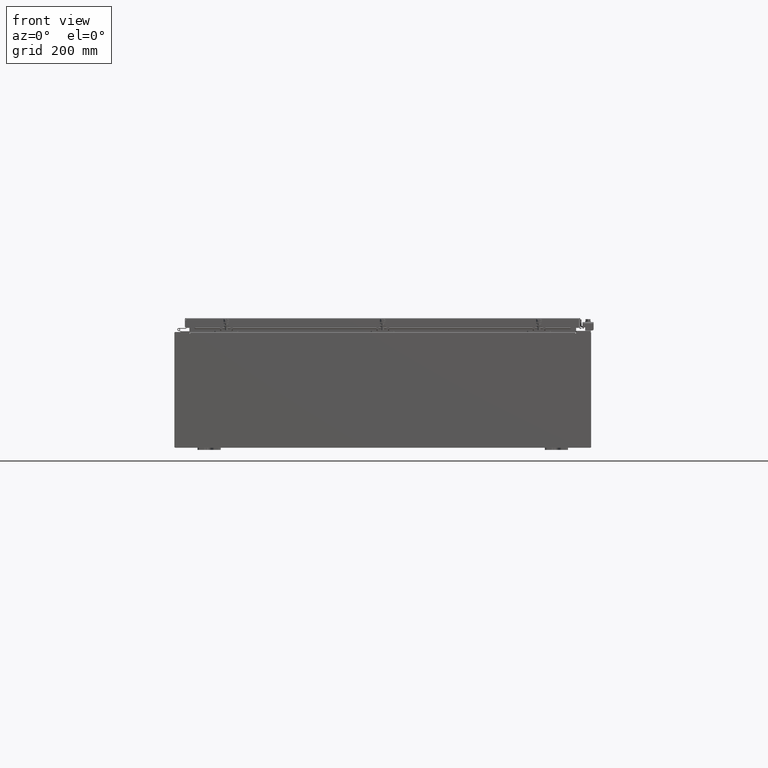
[diagram: clean part render]
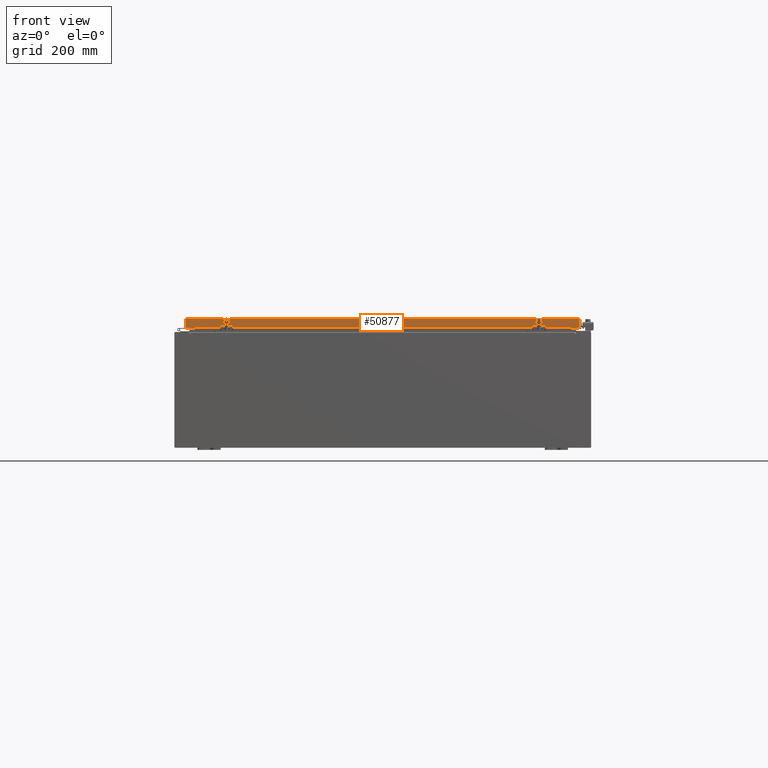
[diagram: same view with one face highlighted and labeled with its STEP entity id]
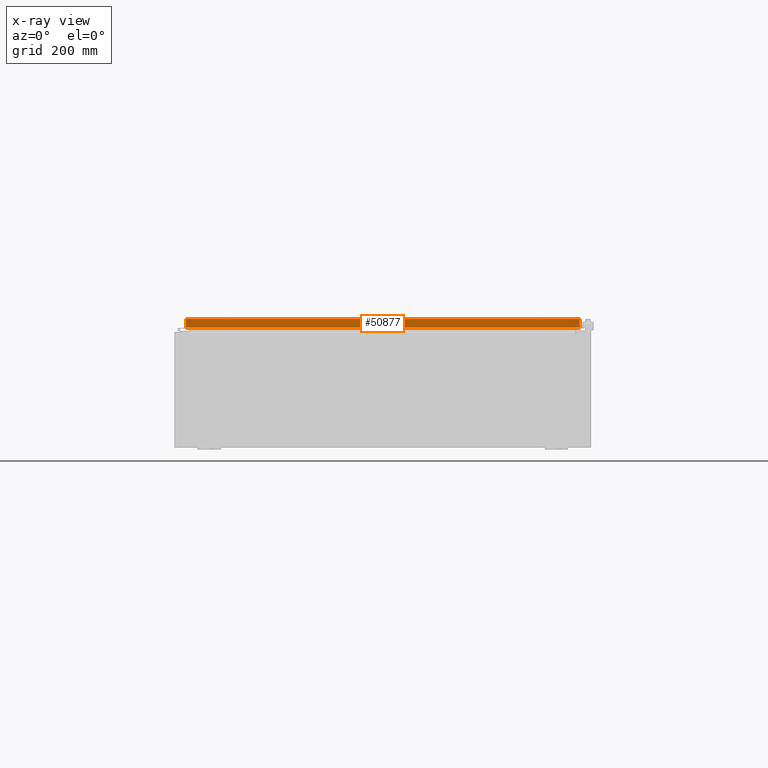
[diagram: x-ray of the same camera — body ghosted, the highlighted face saturated]
A machine part, front view. The second image highlights one B-rep face of the part: STEP entity #50877.
The next image is the same camera in x-ray: the body ghosted, the highlighted face saturated — about 0% of this face is hidden behind the body in this view.
In plain terms, the highlighted planar face has unit normal (-0, 1, -0).
Its self-contained STEP definition (entity closure, byte-faithful):
#14 = EDGE_CURVE ( 'NONE', #45630, #31687, #2429, .T. ) ;
#536 = DIRECTION ( 'NONE',  ( 0.0000000000000000000, 5.637761885544720300E-015, 1.000000000000000000 ) ) ;
#2429 = LINE ( 'NONE', #10888, #22041 ) ;
#5604 = ORIENTED_EDGE ( 'NONE', *, *, #47737, .T. ) ;
#6907 = VECTOR ( 'NONE', #23626, 39.37007874015748100 ) ;
#9279 = VECTOR ( 'NONE', #47193, 39.37007874015748100 ) ;
#10085 = VERTEX_POINT ( 'NONE', #37212 ) ;
#10482 = DIRECTION ( 'NONE',  ( 1.000000000000000000, 6.989207801985715800E-031, -3.922586267643549700E-045 ) ) ;
#10543 = CARTESIAN_POINT ( 'NONE',  ( -16.23915786437626700, -23.09400000000000500, -0.8500000000000048600 ) ) ;
#10814 = FACE_OUTER_BOUND ( 'NONE', #22855, .T. ) ;
#10888 = CARTESIAN_POINT ( 'NONE',  ( 17.07799999999999900, -23.09400000000000100, -0.08769999999999547600 ) ) ;
#13373 = EDGE_CURVE ( 'NONE', #31687, #33104, #36185, .T. ) ;
#13613 = CARTESIAN_POINT ( 'NONE',  ( -16.98915786437627100, -23.09400000000000100, 1.304592866407813600E-013 ) ) ;
#14365 = LINE ( 'NONE', #13613, #35191 ) ;
#14679 = ORIENTED_EDGE ( 'NONE', *, *, #41271, .F. ) ;
#17638 = ORIENTED_EDGE ( 'NONE', *, *, #22158, .F. ) ;
#17857 = DIRECTION ( 'NONE',  ( 0.0000000000000000000, -5.637761885544720300E-015, -1.000000000000000000 ) ) ;
#19027 = LINE ( 'NONE', #39037, #9279 ) ;
#21357 = CARTESIAN_POINT ( 'NONE',  ( 1.614087649790581200E-029, -23.09400000000000100, 1.304592866407813600E-013 ) ) ;
#22041 = VECTOR ( 'NONE', #10482, 39.37007874015748100 ) ;
#22158 = EDGE_CURVE ( 'NONE', #25751, #10085, #30799, .T. ) ;
#22855 = EDGE_LOOP ( 'NONE', ( #39338, #5604, #17638, #14679, #49965, #43068 ) ) ;
#23626 = DIRECTION ( 'NONE',  ( -0.0000000000000000000, -5.637761885544720300E-015, -1.000000000000000000 ) ) ;
#24771 = VERTEX_POINT ( 'NONE', #48034 ) ;
#25505 = DIRECTION ( 'NONE',  ( -6.989207801985715000E-031, 1.000000000000000000, -5.637761885544720300E-015 ) ) ;
#25555 = DIRECTION ( 'NONE',  ( -1.000000000000000000, 0.0000000000000000000, 0.0000000000000000000 ) ) ;
#25751 = VERTEX_POINT ( 'NONE', #10543 ) ;
#28273 = CARTESIAN_POINT ( 'NONE',  ( 17.07799999999999900, -23.09400000000000500, -0.8499999999999996400 ) ) ;
#28292 = CARTESIAN_POINT ( 'NONE',  ( 16.98915786437626700, -23.09400000000000100, -0.08769999999999549000 ) ) ;
#30799 = LINE ( 'NONE', #28273, #51605 ) ;
#31429 = EDGE_CURVE ( 'NONE', #33104, #24771, #19027, .T. ) ;
#31687 = VERTEX_POINT ( 'NONE', #28292 ) ;
#33104 = VERTEX_POINT ( 'NONE', #51809 ) ;
#34783 = VECTOR ( 'NONE', #25555, 39.37007874015748100 ) ;
#35191 = VECTOR ( 'NONE', #17857, 39.37007874015748100 ) ;
#36062 = LINE ( 'NONE', #46415, #34783 ) ;
#36185 = LINE ( 'NONE', #48613, #6907 ) ;
#37212 = CARTESIAN_POINT ( 'NONE',  ( -16.98915786437626700, -23.09400000000000500, -0.8499999999999954300 ) ) ;
#38409 = CARTESIAN_POINT ( 'NONE',  ( -16.98915786437626700, -23.09400000000000100, -0.08769999999999547600 ) ) ;
#39037 = CARTESIAN_POINT ( 'NONE',  ( 17.07799999999999900, -23.09400000000000500, -0.8499999999999996400 ) ) ;
#39338 = ORIENTED_EDGE ( 'NONE', *, *, #14, .F. ) ;
#40611 = DIRECTION ( 'NONE',  ( -1.000000000000000000, -8.758115402030108600E-047, 1.239713195391617400E-016 ) ) ;
#41271 = EDGE_CURVE ( 'NONE', #24771, #25751, #36062, .T. ) ;
#42011 = PLANE ( 'NONE',  #42937 ) ;
#42937 = AXIS2_PLACEMENT_3D ( 'NONE', #21357, #25505, #536 ) ;
#43068 = ORIENTED_EDGE ( 'NONE', *, *, #13373, .F. ) ;
#45630 = VERTEX_POINT ( 'NONE', #38409 ) ;
#46415 = CARTESIAN_POINT ( 'NONE',  ( 16.23915786437626700, -23.09400000000000500, -0.8500000000000048600 ) ) ;
#47193 = DIRECTION ( 'NONE',  ( -1.000000000000000000, -8.758115402030108600E-047, 1.239713195391617400E-016 ) ) ;
#47737 = EDGE_CURVE ( 'NONE', #45630, #10085, #14365, .T. ) ;
#48034 = CARTESIAN_POINT ( 'NONE',  ( 16.23915786437626400, -23.09400000000000500, -0.8500000000000048600 ) ) ;
#48613 = CARTESIAN_POINT ( 'NONE',  ( 16.98915786437626700, -23.09400000000000100, -0.07469999999999958600 ) ) ;
#49965 = ORIENTED_EDGE ( 'NONE', *, *, #31429, .F. ) ;
#50877 = ADVANCED_FACE ( 'NONE', ( #10814 ), #42011, .F. ) ;
#51605 = VECTOR ( 'NONE', #40611, 39.37007874015748100 ) ;
#51809 = CARTESIAN_POINT ( 'NONE',  ( 16.98915786437626700, -23.09400000000000500, -0.8499999999999996400 ) ) ;